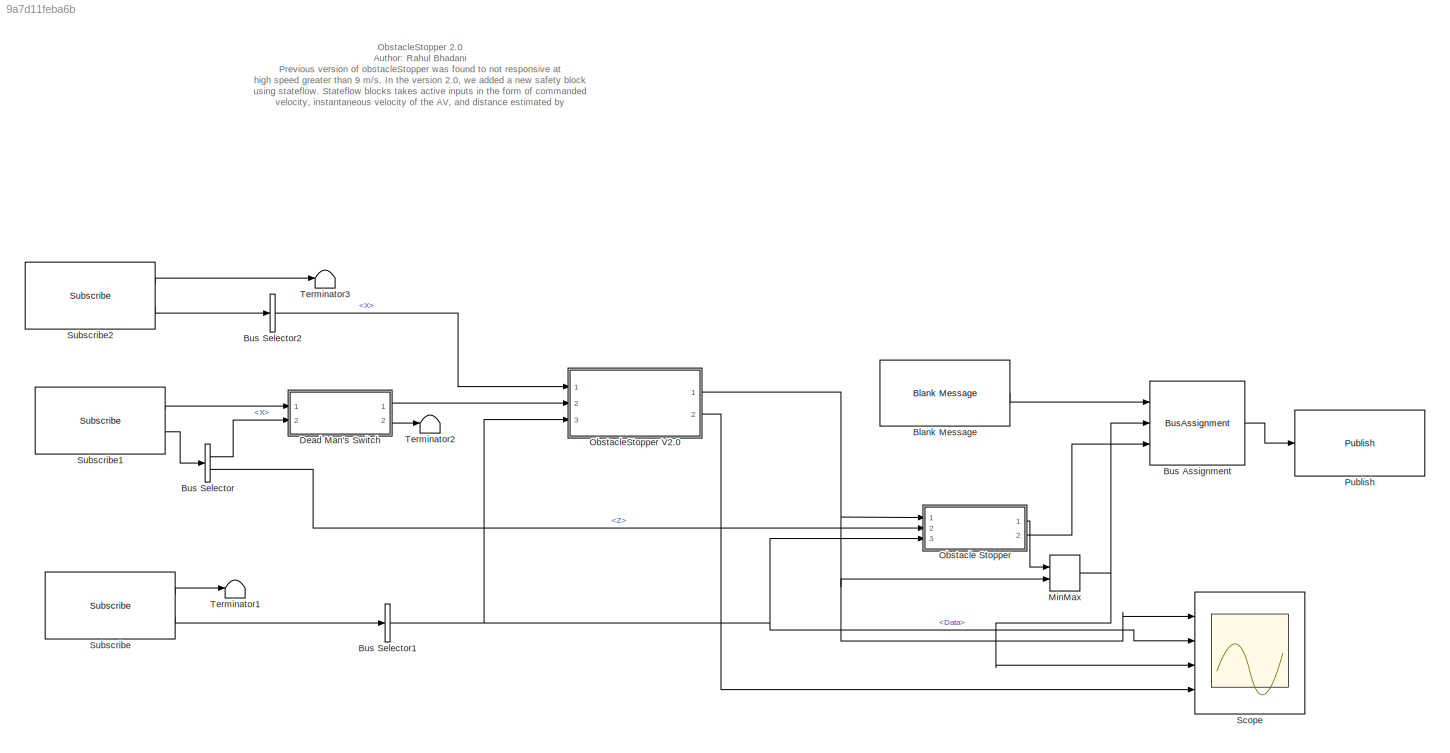
MODEL slx_9a7d11feba6b
KIND model
CONFIG AbsTol = auto
CONFIG EnableMultiTasking = on
CONFIG FixedStep = 0.02
CONFIG MaxStep = auto
CONFIG MinStep = auto
CONFIG RelTol = 1e-3
CONFIG SampleTimeConstraint = Unconstrained
CONFIG Solver = FixedStepAuto
CONFIG SolverName = FixedStepAuto
CONFIG StartTime = 0.0
CONFIG StopTime = inf
BLOCK [Reference] Blank Message  REF=robotlib/Blank Message
  Ports = [0, 1]
  SourceBlock = robotlib/Blank Message
  SourceProductBaseCode = RO
  SourceProductName = Robotics System Toolbox
  SourceType = ROS Blank Message
BLOCK [BusAssignment] Bus Assignment
  AssignedSignals = Linear.X,Angular.Z
  Ports = [3, 1]
BLOCK [BusSelector] Bus Selector
  OutputAsBus = off
  OutputSignals = Linear.X,Angular.Z
  Ports = [1, 2]
BLOCK [BusSelector] Bus Selector1
  OutputAsBus = off
  OutputSignals = Data
  Ports = [1, 1]
BLOCK [BusSelector] Bus Selector2
  OutputAsBus = off
  OutputSignals = Linear.X
  Ports = [1, 1]
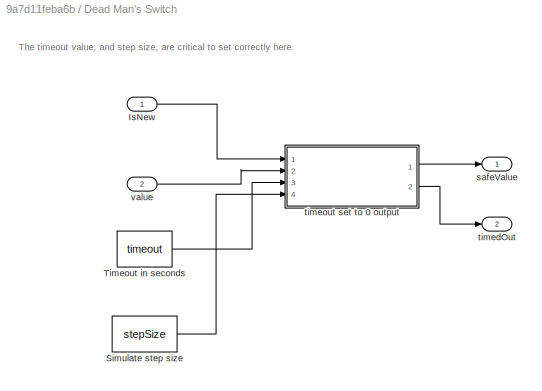
BLOCK [SubSystem] Dead Man's Switch
  Ports = [2, 2]
  RequestExecContextInheritance = off
  TreatAsAtomicUnit = on
BLOCK [Inport] Dead Man's Switch/IsNew
  IconDisplay = Port number
BLOCK [Constant] Dead Man's Switch/Simulate step size
  Value = stepSize
BLOCK [Constant] Dead Man's Switch/Timeout in seconds
  Value = timeout
BLOCK [Outport] Dead Man's Switch/safeValue
  IconDisplay = Port number
  InitialOutput = [0]
  VectorParamsAs1DForOutWhenUnconnected = off
BLOCK [Outport] Dead Man's Switch/timedOut
  IconDisplay = Port number
  InitialOutput = [0]
  Port = 2
  VectorParamsAs1DForOutWhenUnconnected = off
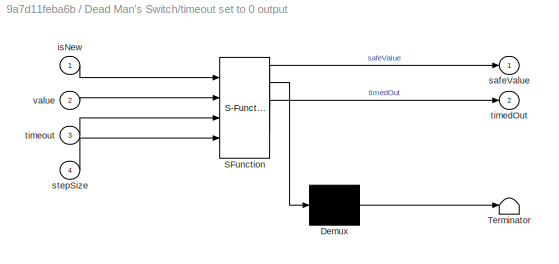
BLOCK [SubSystem] Dead Man's Switch/timeout set to 0 output
  ErrorFcn = Stateflow.Translate.translate
  PermitHierarchicalResolution = ExplicitOnly
  Ports = [4, 2]
  RequestExecContextInheritance = off
  SFBlockType = MATLAB Function
  TreatAsAtomicUnit = on
BLOCK [Demux] Dead Man's Switch/timeout set to 0 output/ Demux 
  Outputs = 1
  Ports = [1, 1]
BLOCK [S-Function] Dead Man's Switch/timeout set to 0 output/ SFunction 
  EnableBusSupport = off
  FunctionName = sf_sfun
  PortCounts = [4 3]
  Ports = [4, 3]
  SFcnIsStateOwnerBlock = off
  SFunctionDeploymentMode = off
  Tag = Stateflow S-Function 2
BLOCK [Terminator] Dead Man's Switch/timeout set to 0 output/ Terminator 
BLOCK [Inport] Dead Man's Switch/timeout set to 0 output/isNew
  IconDisplay = Port number
BLOCK [Outport] Dead Man's Switch/timeout set to 0 output/safeValue
  IconDisplay = Port number
  VectorParamsAs1DForOutWhenUnconnected = off
BLOCK [Inport] Dead Man's Switch/timeout set to 0 output/stepSize
  IconDisplay = Port number
  Port = 4
BLOCK [Outport] Dead Man's Switch/timeout set to 0 output/timedOut
  IconDisplay = Port number
  Port = 2
  VectorParamsAs1DForOutWhenUnconnected = off
BLOCK [Inport] Dead Man's Switch/timeout set to 0 output/timeout
  IconDisplay = Port number
  Port = 3
BLOCK [Inport] Dead Man's Switch/timeout set to 0 output/value
  IconDisplay = Port number
  Port = 2
BLOCK [Inport] Dead Man's Switch/value
  IconDisplay = Port number
  Port = 2
BLOCK [MinMax] MinMax
  InputSameDT = off
  Inputs = 2
  Ports = [2, 1]
  SaturateOnIntegerOverflow = off
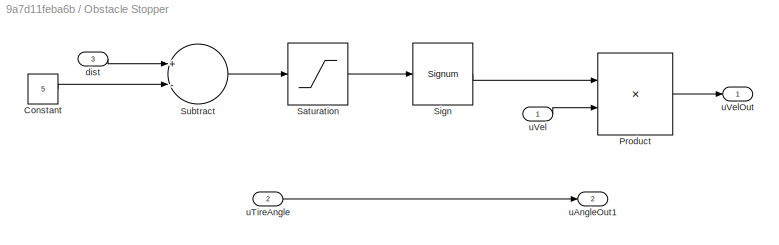
BLOCK [SubSystem] Obstacle Stopper
  Ports = [3, 2]
  RequestExecContextInheritance = off
BLOCK [Constant] Obstacle Stopper/Constant
  Value = 5
BLOCK [Product] Obstacle Stopper/Product
  InputSameDT = off
  OutDataTypeStr = Inherit: Inherit via internal rule
  Ports = [2, 1]
  RndMeth = Floor
  SaturateOnIntegerOverflow = off
BLOCK [Saturate] Obstacle Stopper/Saturation
  InputPortMap = u0
  LowerLimit = 0
  Ports = [1, 1]
  UpperLimit = 1
BLOCK [Signum] Obstacle Stopper/Sign
BLOCK [Sum] Obstacle Stopper/Subtract
  InputSameDT = off
  Inputs = +-
  OutDataTypeStr = Inherit: Inherit via internal rule
  Ports = [2, 1]
  SaturateOnIntegerOverflow = off
BLOCK [Inport] Obstacle Stopper/dist
  IconDisplay = Port number
  Port = 3
BLOCK [Outport] Obstacle Stopper/uAngleOut1
  IconDisplay = Port number
  Port = 2
  VectorParamsAs1DForOutWhenUnconnected = off
BLOCK [Inport] Obstacle Stopper/uTireAngle
  IconDisplay = Port number
  Port = 2
BLOCK [Inport] Obstacle Stopper/uVel
  IconDisplay = Port number
BLOCK [Outport] Obstacle Stopper/uVelOut
  IconDisplay = Port number
  VectorParamsAs1DForOutWhenUnconnected = off
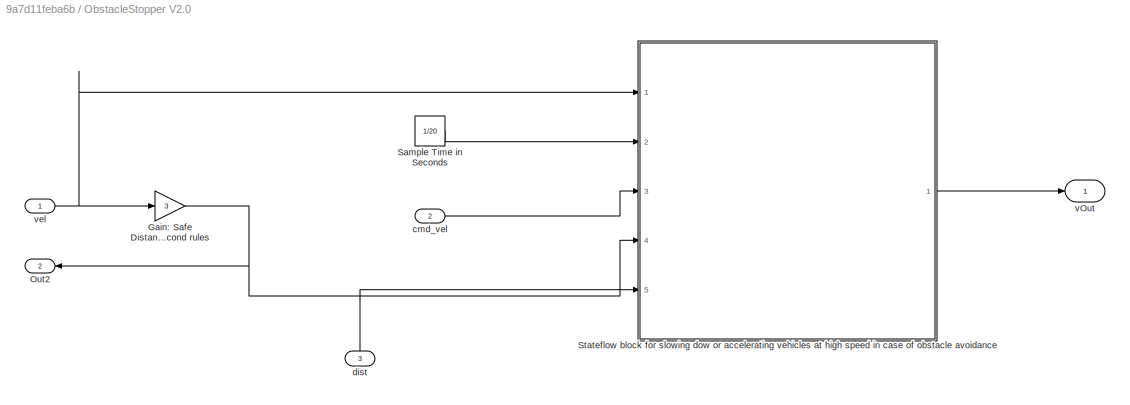
BLOCK [SubSystem] ObstacleStopper V2.0
  Ports = [3, 2]
  RequestExecContextInheritance = off
BLOCK [Gain] ObstacleStopper V2.0/Gain: Safe Distance At HighSpeed follows 3 second rules
  Gain = 3
  OutDataTypeStr = Inherit: Inherit via internal rule
  ParamDataTypeStr = Inherit: Inherit via internal rule
  SaturateOnIntegerOverflow = off
BLOCK [Outport] ObstacleStopper V2.0/Out2
  IconDisplay = Port number
  Port = 2
  VectorParamsAs1DForOutWhenUnconnected = off
BLOCK [Constant] ObstacleStopper V2.0/Sample Time in Seconds
  Value = 1/20
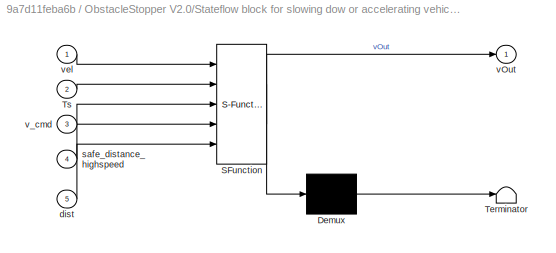
BLOCK [SubSystem] ObstacleStopper V2.0/Stateflow block for slowing dow or accelerating vehicles at high speed in case of obstacle avoidance
  ErrorFcn = Stateflow.Translate.translate
  PermitHierarchicalResolution = ExplicitOnly
  Ports = [5, 1]
  RequestExecContextInheritance = off
  SFBlockType = Chart
  TreatAsAtomicUnit = on
BLOCK [Demux] ObstacleStopper V2.0/Stateflow block for slowing dow or accelerating vehicles at high speed in case of obstacle avoidance/ Demux 
  Outputs = 1
  Ports = [1, 1]
BLOCK [S-Function] ObstacleStopper V2.0/Stateflow block for slowing dow or accelerating vehicles at high speed in case of obstacle avoidance/ SFunction 
  EnableBusSupport = off
  FunctionName = sf_sfun
  PortCounts = [5 2]
  Ports = [5, 2]
  SFcnIsStateOwnerBlock = off
  SFunctionDeploymentMode = off
  Tag = Stateflow S-Function 1
BLOCK [Terminator] ObstacleStopper V2.0/Stateflow block for slowing dow or accelerating vehicles at high speed in case of obstacle avoidance/ Terminator 
BLOCK [Inport] ObstacleStopper V2.0/Stateflow block for slowing dow or accelerating vehicles at high speed in case of obstacle avoidance/Ts
  IconDisplay = Port number
  Port = 2
BLOCK [Inport] ObstacleStopper V2.0/Stateflow block for slowing dow or accelerating vehicles at high speed in case of obstacle avoidance/dist
  IconDisplay = Port number
  Port = 5
BLOCK [Inport] ObstacleStopper V2.0/Stateflow block for slowing dow or accelerating vehicles at high speed in case of obstacle avoidance/safe_distance_highspeed
  IconDisplay = Port number
  Port = 4
BLOCK [Outport] ObstacleStopper V2.0/Stateflow block for slowing dow or accelerating vehicles at high speed in case of obstacle avoidance/vOut
  IconDisplay = Port number
  VectorParamsAs1DForOutWhenUnconnected = off
BLOCK [Inport] ObstacleStopper V2.0/Stateflow block for slowing dow or accelerating vehicles at high speed in case of obstacle avoidance/v_cmd
  IconDisplay = Port number
  Port = 3
BLOCK [Inport] ObstacleStopper V2.0/Stateflow block for slowing dow or accelerating vehicles at high speed in case of obstacle avoidance/vel
  IconDisplay = Port number
BLOCK [Inport] ObstacleStopper V2.0/cmd_vel
  IconDisplay = Port number
  Port = 2
BLOCK [Inport] ObstacleStopper V2.0/dist
  IconDisplay = Port number
  Port = 3
BLOCK [Outport] ObstacleStopper V2.0/vOut
  IconDisplay = Port number
  VectorParamsAs1DForOutWhenUnconnected = off
BLOCK [Inport] ObstacleStopper V2.0/vel
  IconDisplay = Port number
BLOCK [Reference] Publish  REF=robotlib/Publish
  Ports = [1]
  SourceBlock = robotlib/Publish
  SourceProductBaseCode = RO
  SourceProductName = Robotics System Toolbox
  SourceType = ROS Publish
BLOCK [Scope] Scope
  Floating = off
  NumInputPorts = 4
  Ports = [4]
  ScopeSpecificationString = Simulink.scopes.TimeScopeBlockCfg('CurrentConfiguration', extmgr.ConfigurationSet(extmgr.Configuration('Core','General UI',true),extmgr.Configuration('Core','Source UI',true),extmgr.Configuration('Sources','WiredSimulink',true),extmgr.Configuration('Visuals','Time Domain',true,'SerializedDisplays',{struct('MinYLimReal','-6.61279','MaxYLimReal','41.46332','YLabelReal','','MinYLimMag','0.00000','Max...<+1461ch>
BLOCK [Reference] Subscribe  REF=robotlib/Subscribe
  Ports = [0, 2]
  SourceBlock = robotlib/Subscribe
  SourceProductBaseCode = RO
  SourceProductName = Robotics System Toolbox
  SourceType = ROS Subscribe
BLOCK [Reference] Subscribe1  REF=robotlib/Subscribe
  Ports = [0, 2]
  SourceBlock = robotlib/Subscribe
  SourceProductBaseCode = RO
  SourceProductName = Robotics System Toolbox
  SourceType = ROS Subscribe
BLOCK [Reference] Subscribe2  REF=robotlib/Subscribe
  Ports = [0, 2]
  SourceBlock = robotlib/Subscribe
  SourceProductBaseCode = RO
  SourceProductName = Robotics System Toolbox
  SourceType = ROS Subscribe
BLOCK [Terminator] Terminator1
BLOCK [Terminator] Terminator2
BLOCK [Terminator] Terminator3
ANNOTATION (root): ObstacleStopper 2.0 Author: Rahul Bhadani Previous version of obstacleStopper was found to not responsive at high speed greater than 9 m/s. In the version 2.0, we added a new safety block using stateflow. Stateflow blocks takes active inputs in the form of commanded velocity, instantaneous velocity of the AV, and distance estimated by rangefinder (or other sensor used to perform distance estimatio...<+312ch>
ANNOTATION Dead Man's Switch: The timeout value, and step size, are critical to set correctly here.
LINE Blank Message:1 -> Bus Assignment:1
LINE Bus Assignment:1 -> Publish:1
NET Bus Selector1:1 -> Obstacle Stopper:3, ObstacleStopper V2.0:3, Scope:2
LINE Bus Selector2:1 -> ObstacleStopper V2.0:1
LINE Bus Selector:1 -> Dead Man's Switch:2
LINE Bus Selector:2 -> Obstacle Stopper:2
LINE Dead Man's Switch/IsNew:1 -> Dead Man's Switch/timeout set to 0 output:1
LINE Dead Man's Switch/Simulate step size:1 -> Dead Man's Switch/timeout set to 0 output:4
LINE Dead Man's Switch/Timeout in seconds:1 -> Dead Man's Switch/timeout set to 0 output:3
LINE Dead Man's Switch/timeout set to 0 output:1 -> Dead Man's Switch/safeValue:1
LINE Dead Man's Switch/timeout set to 0 output:2 -> Dead Man's Switch/timedOut:1
LINE Dead Man's Switch/value:1 -> Dead Man's Switch/timeout set to 0 output:2
LINE Dead Man's Switch:1 -> ObstacleStopper V2.0:2
LINE Dead Man's Switch:2 -> Terminator2:1
NET MinMax:1 -> Bus Assignment:2, Scope:3
LINE Obstacle Stopper/Constant:1 -> Obstacle Stopper/Subtract:2
LINE Obstacle Stopper/Product:1 -> Obstacle Stopper/uVelOut:1
LINE Obstacle Stopper/Saturation:1 -> Obstacle Stopper/Sign:1
LINE Obstacle Stopper/Sign:1 -> Obstacle Stopper/Product:1
LINE Obstacle Stopper/Subtract:1 -> Obstacle Stopper/Saturation:1
LINE Obstacle Stopper/dist:1 -> Obstacle Stopper/Subtract:1
LINE Obstacle Stopper/uTireAngle:1 -> Obstacle Stopper/uAngleOut1:1
LINE Obstacle Stopper/uVel:1 -> Obstacle Stopper/Product:2
LINE Obstacle Stopper:1 -> MinMax:1
LINE Obstacle Stopper:2 -> Bus Assignment:3
NET ObstacleStopper V2.0/Gain: Safe Distance At HighSpeed follows 3 second rules:1 -> ObstacleStopper V2.0/Out2:1, ObstacleStopper V2.0/Stateflow block for slowing dow or accelerating vehicles at high speed in case of obstacle avoidance:4
LINE ObstacleStopper V2.0/Sample Time in Seconds:1 -> ObstacleStopper V2.0/Stateflow block for slowing dow or accelerating vehicles at high speed in case of obstacle avoidance:2
LINE ObstacleStopper V2.0/Stateflow block for slowing dow or accelerating vehicles at high speed in case of obstacle avoidance:1 -> ObstacleStopper V2.0/vOut:1
LINE ObstacleStopper V2.0/cmd_vel:1 -> ObstacleStopper V2.0/Stateflow block for slowing dow or accelerating vehicles at high speed in case of obstacle avoidance:3
LINE ObstacleStopper V2.0/dist:1 -> ObstacleStopper V2.0/Stateflow block for slowing dow or accelerating vehicles at high speed in case of obstacle avoidance:5
NET ObstacleStopper V2.0/vel:1 -> ObstacleStopper V2.0/Gain: Safe Distance At HighSpeed follows 3 second rules:1, ObstacleStopper V2.0/Stateflow block for slowing dow or accelerating vehicles at high speed in case of obstacle avoidance:1
NET ObstacleStopper V2.0:1 -> MinMax:2, Obstacle Stopper:1, Scope:1
LINE ObstacleStopper V2.0:2 -> Scope:4
LINE Subscribe1:1 -> Dead Man's Switch:1
LINE Subscribe1:2 -> Bus Selector:1
LINE Subscribe2:1 -> Terminator3:1
LINE Subscribe2:2 -> Bus Selector2:1
LINE Subscribe:1 -> Terminator1:1
LINE Subscribe:2 -> Bus Selector1:1
note: NET lines group one-source signal fan-out (src -> all destinations, sorted); 1:1 wires keep LINE
CHART ObstacleStopper V2.0/Stateflow block for slowing dow or accelerating vehicles at high
speed in case of obstacle avoidance states=6 transitions=10
  STATE_LABEL 'Check_initial_Safe_distance\nentry:distance = dist;\nduring:vOut = 0;'
  STATE_LABEL 'If initial distance is less than 3 second distance,\nthen command velocity  equal to one third of\noriginally commanded velocity.'
  STATE_LABEL 'NormalDrive\nentry: vOut = v_cmd; distance = dist;\nduring: vOut = v_cmd; distance = dist;'
  STATE_LABEL 'NewCommand\nentry:  vOut = v_cmd/3; distance = dist;\nduring: vOut = v_cmd/3; distance = dist;'
  STATE_LABEL 'Decelerate\nentry:  vOut = vel/10; distance = dist;\nduring: vOut = vel/10; distance = dist;'
  STATE_LABEL 'Accelerate\nentry: count = 1\nduring: vOut = vel + 0.05*(Ts); count = count + 1;'
CHART Dead Man's Switch/timeout set to 0 output states=1 transitions=1
  STATE_LABEL 'eML_blk_kernel()'
  STATE_LABEL 'SCRIPT:\nfunction [safeValue,timedOut] = fcn(isNew,value,timeout,stepSize)\n%#codegen\npersistent sinceLastMsg\ntimedOut=true;\nif isempty(sinceLastMsg)\n    sinceLastMsg=(timeout/stepSize)+1;\nend\n\nsafeValue=0;\n% if no new message\n% after timeout, we output 0\nif( isNew == true )\n    sinceLastMsg = 0;\nelse\n    sinceLastMsg = sinceLastMsg+1;\nend\n\n% Note: we require step size as an input here, and depend o...<+195ch>'
